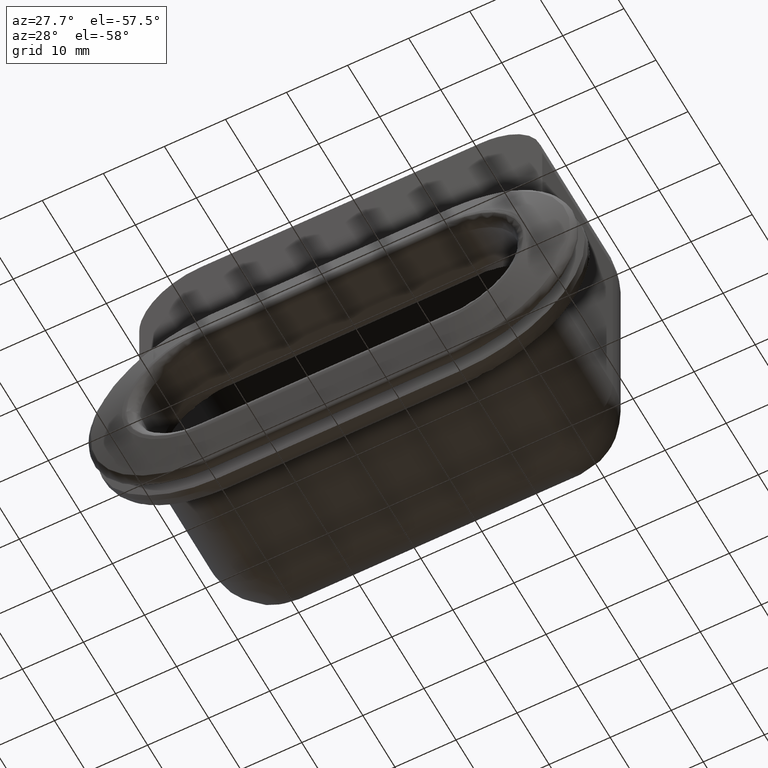
[diagram: clean part render]
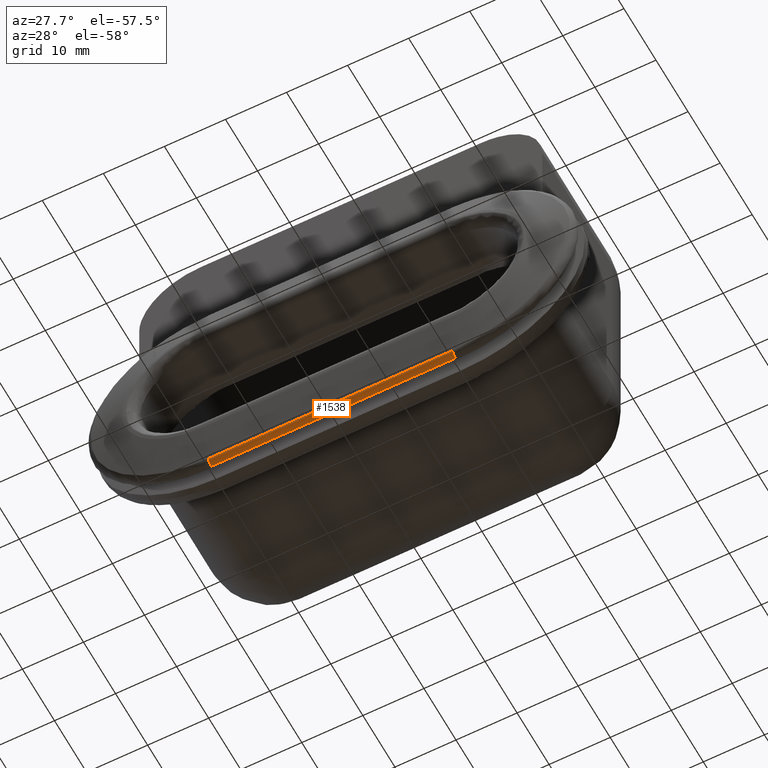
[diagram: same view with one face highlighted and labeled with its STEP entity id]
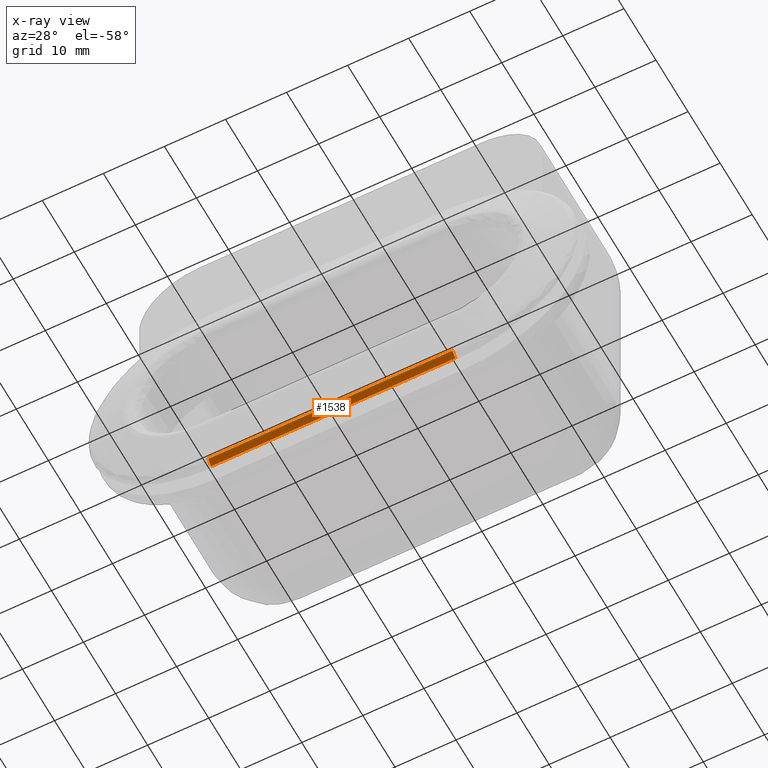
[diagram: x-ray of the same camera — body ghosted, the highlighted face saturated]
A machine part, auxiliary view. The second image highlights one B-rep face of the part: STEP entity #1538.
The next image is the same camera in x-ray: the body ghosted, the highlighted face saturated — about 0% of this face is hidden behind the body in this view.
In plain terms, the highlighted face is a freeform B-spline surface patch.
Its self-contained STEP definition (entity closure, byte-faithful):
#1382=CARTESIAN_POINT('',(-20.0,2.754301412754455,-20.0));
#1383=VERTEX_POINT('',#1382);
#1384=CARTESIAN_POINT('',(-20.0,1.792777465113545,-19.274721127897401));
#1385=VERTEX_POINT('',#1384);
#1386=CARTESIAN_POINT('',(-20.0,2.754301412754455,-20.0));
#1387=CARTESIAN_POINT('',(-20.0,2.000000000000096,-20.0));
#1388=CARTESIAN_POINT('',(-20.0,1.792777465113545,-19.274721127897401));
#1396=(BOUNDED_CURVE()B_SPLINE_CURVE(2,(#1386,#1387,#1388),.UNSPECIFIED.,.F.,.U.)CURVE()GEOMETRIC_REPRESENTATION_ITEM()QUASI_UNIFORM_CURVE()RATIONAL_B_SPLINE_CURVE((1.0,0.798348648116028,1.0))REPRESENTATION_ITEM(''));
#1397=EDGE_CURVE('',#1383,#1385,#1396,.T.);
#1494=CARTESIAN_POINT('',(21.0,1.781931492356753,-19.233445363855800));
#1495=CARTESIAN_POINT('',(-21.024999999999999,1.781931492356753,-19.233445363855800));
#1496=CARTESIAN_POINT('',(21.0,1.977582370544497,-20.048389921789600));
#1497=CARTESIAN_POINT('',(-21.024999999999995,1.977582370544497,-20.048389921789600));
#1498=CARTESIAN_POINT('',(21.0,2.814179908088320,-19.998205673093750));
#1499=CARTESIAN_POINT('',(-21.025000000000002,2.814179908088320,-19.998205673093750));
#1507=(BOUNDED_SURFACE()B_SPLINE_SURFACE(1,2,((#1494,#1496,#1498),(#1495,#1497,#1499)),.UNSPECIFIED.,.F.,.F.,.U.)B_SPLINE_SURFACE_WITH_KNOTS((2,2),(3,3),(0.0,42.025000000000013),(0.0,0.985709215170145),.UNSPECIFIED.)GEOMETRIC_REPRESENTATION_ITEM()RATIONAL_B_SPLINE_SURFACE(((1.0,0.763829952392158,0.993249889332759),(1.0,0.763829952392158,0.993249889332759)))REPRESENTATION_ITEM('')SURFACE());
#1508=CARTESIAN_POINT('',(20.0,2.754301412754345,-20.0));
#1509=VERTEX_POINT('',#1508);
#1510=CARTESIAN_POINT('',(20.0,1.792777465113535,-19.274721127897401));
#1511=VERTEX_POINT('',#1510);
#1512=CARTESIAN_POINT('',(20.0,2.754301412754345,-20.0));
#1513=CARTESIAN_POINT('',(19.999999999999996,2.000000000000007,-19.999999999999996));
#1514=CARTESIAN_POINT('',(20.0,1.792777465113530,-19.274721127897401));
#1522=(BOUNDED_CURVE()B_SPLINE_CURVE(2,(#1512,#1513,#1514),.UNSPECIFIED.,.F.,.U.)CURVE()GEOMETRIC_REPRESENTATION_ITEM()QUASI_UNIFORM_CURVE()RATIONAL_B_SPLINE_CURVE((1.0,0.798348648116036,1.0))REPRESENTATION_ITEM(''));
#1523=EDGE_CURVE('',#1509,#1511,#1522,.T.);
#1524=ORIENTED_EDGE('',*,*,#1523,.T.);
#1525=CARTESIAN_POINT('',(-20.0,1.792777465113545,-19.274721127897401));
#1526=CARTESIAN_POINT('',(20.0,1.792777465113535,-19.274721127897401));
#1527=QUASI_UNIFORM_CURVE('',1,(#1525,#1526),.UNSPECIFIED.,.F.,.U.);
#1528=EDGE_CURVE('',#1385,#1511,#1527,.T.);
#1529=ORIENTED_EDGE('',*,*,#1528,.F.);
#1530=ORIENTED_EDGE('',*,*,#1397,.F.);
#1531=CARTESIAN_POINT('',(20.0,2.754301412754345,-20.0));
#1532=CARTESIAN_POINT('',(-20.0,2.754301412754455,-20.0));
#1533=QUASI_UNIFORM_CURVE('',1,(#1531,#1532),.UNSPECIFIED.,.F.,.U.);
#1534=EDGE_CURVE('',#1509,#1383,#1533,.T.);
#1535=ORIENTED_EDGE('',*,*,#1534,.F.);
#1536=EDGE_LOOP('',(#1524,#1529,#1530,#1535));
#1537=FACE_OUTER_BOUND('',#1536,.T.);
#1538=ADVANCED_FACE('',(#1537),#1507,.T.);